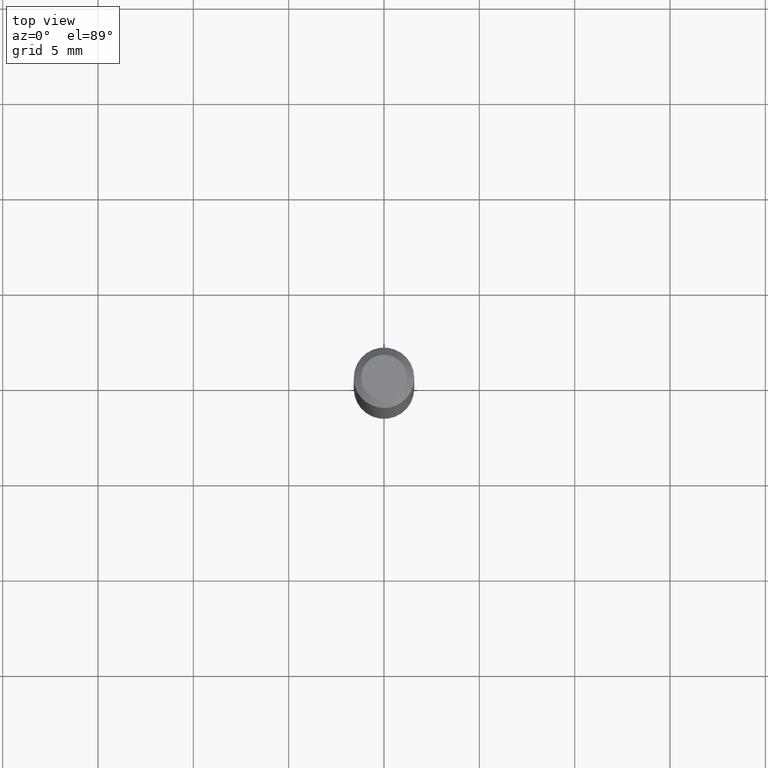
[diagram: clean part render]
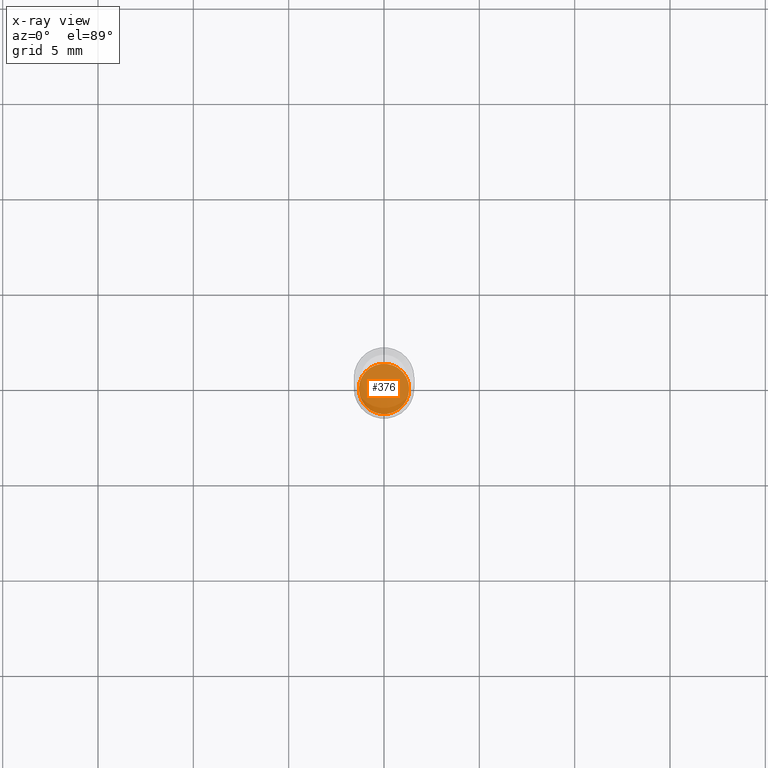
[diagram: x-ray — body ghosted, one internal face saturated and labeled with its STEP entity id]
A machine part, top view, then the same camera in x-ray: the body is ghosted and one INTERNAL B-rep face — a face not visible from any outside direction — is saturated and labeled: STEP entity #376.
In plain terms, the highlighted planar face has unit normal (-0, 0, 1).
Its self-contained STEP definition (entity closure, byte-faithful):
#13 = VERTEX_POINT ( 'NONE', #346 ) ;
#16 = ORIENTED_EDGE ( 'NONE', *, *, #83, .F. ) ;
#47 = AXIS2_PLACEMENT_3D ( 'NONE', #101, #60, #249 ) ;
#60 = DIRECTION ( 'NONE',  ( -2.445468806185136597E-29, 3.491481338843145583E-15, 1.000000000000000000 ) ) ;
#83 = EDGE_CURVE ( 'NONE', #13, #132, #221, .T. ) ;
#101 = CARTESIAN_POINT ( 'NONE',  ( 3.283041872303546419E-29, -4.687313697396923253E-15, -1.342500000000000249 ) ) ;
#131 = PLANE ( 'NONE',  #241 ) ;
#132 = VERTEX_POINT ( 'NONE', #292 ) ;
#152 = DIRECTION ( 'NONE',  ( 1.000000000000000000, -6.982962677686261977E-15, 0.000000000000000000 ) ) ;
#184 = CARTESIAN_POINT ( 'NONE',  ( 3.283041872303546419E-29, -4.687313697396923253E-15, -1.342500000000000249 ) ) ;
#200 = CIRCLE ( 'NONE', #408, 0.05199999999999996986 ) ;
#221 = CIRCLE ( 'NONE', #47, 0.05199999999999996986 ) ;
#225 = DIRECTION ( 'NONE',  ( -2.445468806185136597E-29, 3.491481338843145583E-15, 1.000000000000000000 ) ) ;
#237 = DIRECTION ( 'NONE',  ( -2.438088387897960049E-29, 3.491481338843145188E-15, 1.000000000000000000 ) ) ;
#241 = AXIS2_PLACEMENT_3D ( 'NONE', #363, #237, #486 ) ;
#249 = DIRECTION ( 'NONE',  ( 1.000000000000000000, -6.982962677686261977E-15, 0.000000000000000000 ) ) ;
#257 = ORIENTED_EDGE ( 'NONE', *, *, #272, .F. ) ;
#260 = EDGE_LOOP ( 'NONE', ( #16, #257 ) ) ;
#272 = EDGE_CURVE ( 'NONE', #132, #13, #200, .T. ) ;
#292 = CARTESIAN_POINT ( 'NONE',  ( -0.05199999999999996986, -4.315182247627560416E-15, -1.342500000000000249 ) ) ;
#294 = FACE_OUTER_BOUND ( 'NONE', #260, .T. ) ;
#346 = CARTESIAN_POINT ( 'NONE',  ( 0.05199999999999996986, -5.050427756636608617E-15, -1.342500000000000249 ) ) ;
#363 = CARTESIAN_POINT ( 'NONE',  ( 3.283041872303546419E-29, -4.687313697396923253E-15, -1.342500000000000249 ) ) ;
#376 = ADVANCED_FACE ( 'NONE', ( #294 ), #131, .F. ) ;
#408 = AXIS2_PLACEMENT_3D ( 'NONE', #184, #225, #152 ) ;
#486 = DIRECTION ( 'NONE',  ( 1.000000000000000000, -6.982962677686265922E-15, 4.876176775795935793E-29 ) ) ;